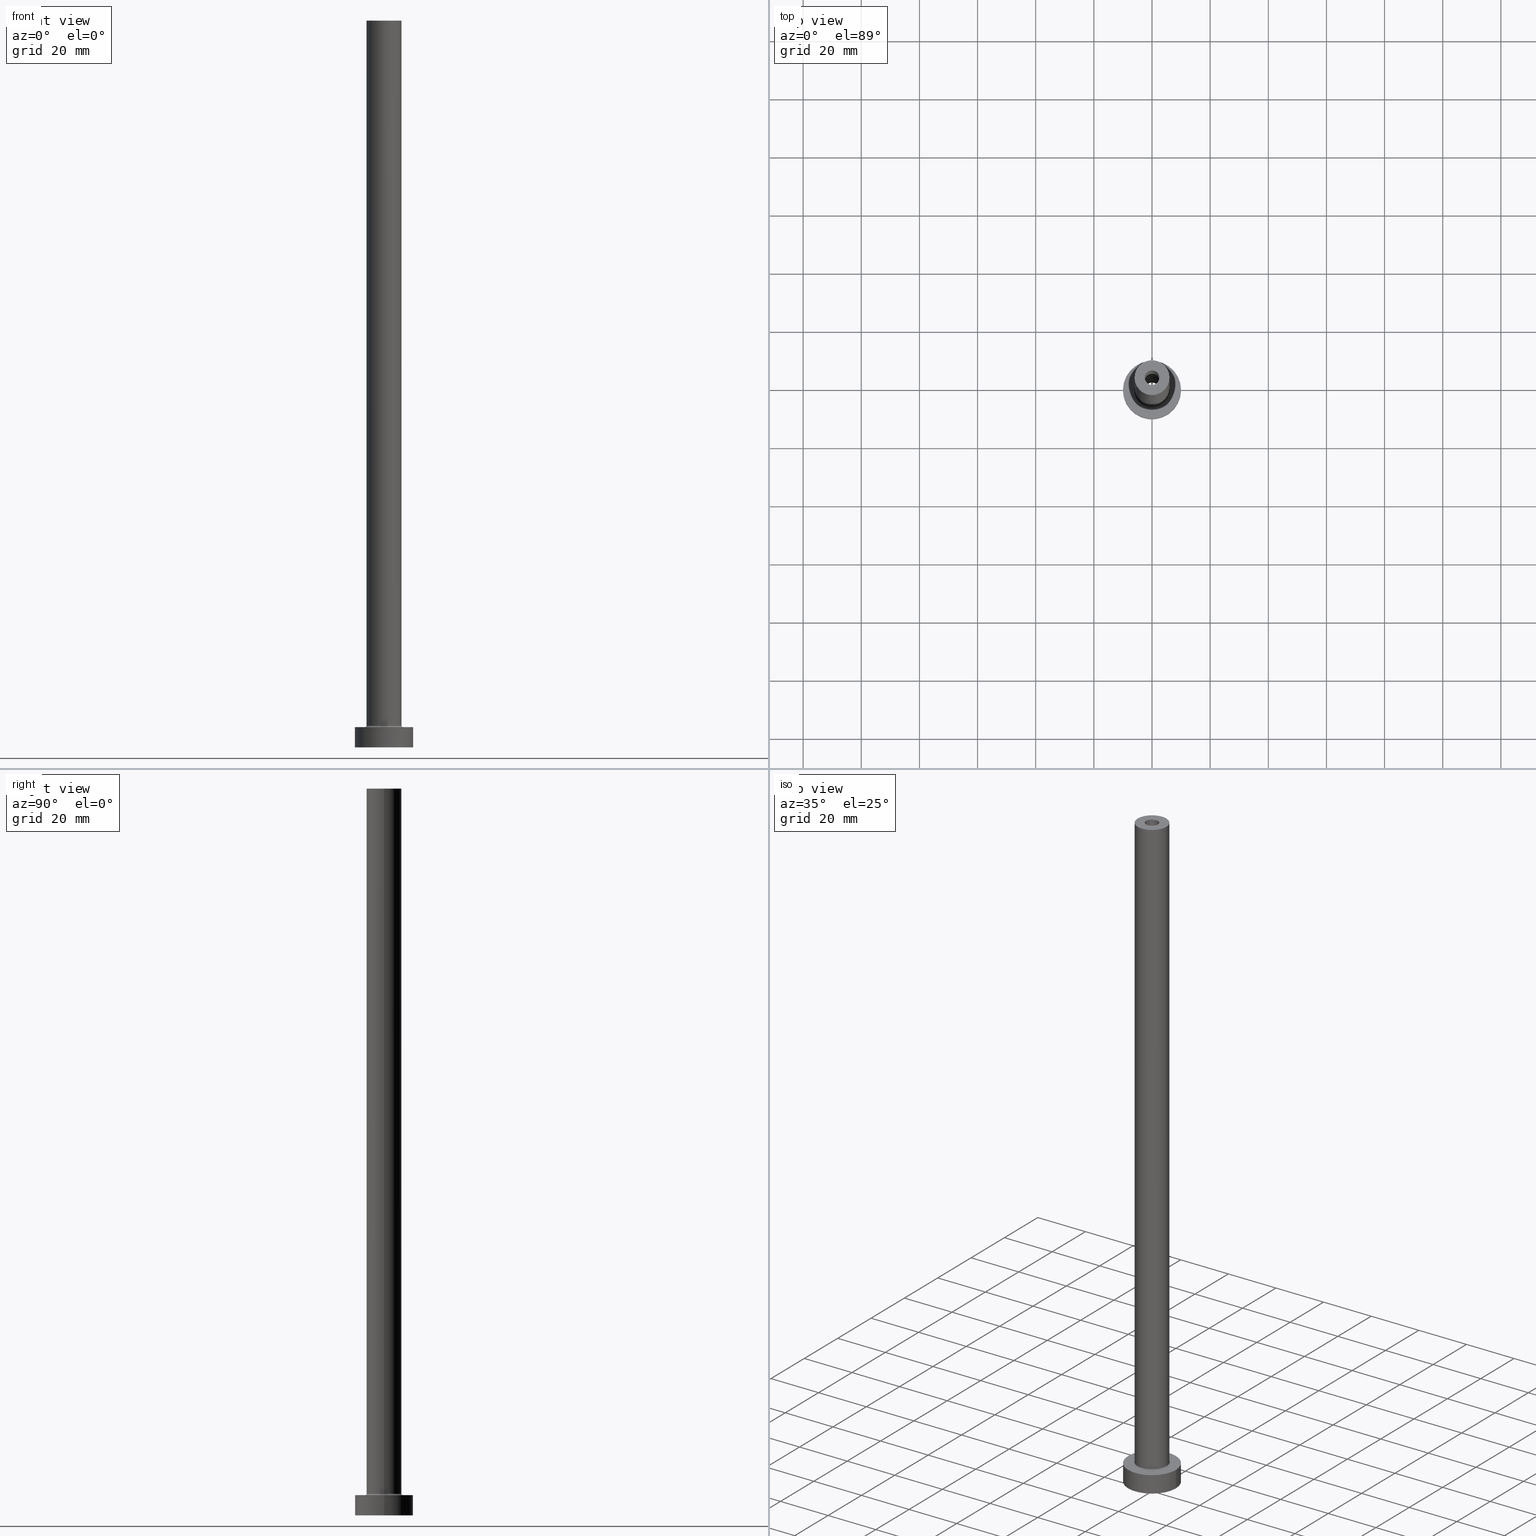
[diagram: canonical four-view strip — front | top / right | iso, engineering-drawing reading convention]
A machine part, canonical four-view strip (front | top / right | iso — engineering-drawing reading convention). The complete STEP part file that produces these views, byte-faithful:
ISO-10303-21;
HEADER;
FILE_DESCRIPTION (( 'STEP AP203' ),
    '1' );
FILE_NAME ('00a3.STEP',
    '2023-02-13T16:46:33',
    ( '' ),
    ( '' ),
    'SwSTEP 2.0',
    'SolidWorks 2019',
    '' );
FILE_SCHEMA (( 'CONFIG_CONTROL_DESIGN' ));
ENDSEC;

DATA;
#1 = DIRECTION ( 'NONE',  ( 1.000000000000000000, 0.000000000000000000, 0.000000000000000000 ) ) ;
#2 = ADVANCED_FACE ( 'NONE', ( #62 ), #175, .F. ) ;
#3 = FACE_BOUND ( 'NONE', #322, .T. ) ;
#4 = DIRECTION ( 'NONE',  ( 1.000000000000000000, 0.000000000000000000, -0.000000000000000000 ) ) ;
#5 = AXIS2_PLACEMENT_3D ( 'NONE', #11, #285, #88 ) ;
#6 = DIRECTION ( 'NONE',  ( 0.000000000000000000, 0.000000000000000000, -1.000000000000000000 ) ) ;
#7 = EDGE_LOOP ( 'NONE', ( #290, #405, #328, #369 ) ) ;
#8 = CYLINDRICAL_SURFACE ( 'NONE', #448, 6.000000000000000888 ) ;
#9 = EDGE_LOOP ( 'NONE', ( #42, #411 ) ) ;
#10 = CC_DESIGN_PERSON_AND_ORGANIZATION_ASSIGNMENT ( #299, #64, ( #324 ) ) ;
#11 = CARTESIAN_POINT ( 'NONE',  ( 0.000000000000000000, 0.000000000000000000, 212.4953318805773961 ) ) ;
#12 = VERTEX_POINT ( 'NONE', #382 ) ;
#13 = AXIS2_PLACEMENT_3D ( 'NONE', #379, #94, #101 ) ;
#14 = ORIENTED_EDGE ( 'NONE', *, *, #168, .T. ) ;
#15 = CC_DESIGN_SECURITY_CLASSIFICATION ( #145, ( #324 ) ) ;
#16 = EDGE_CURVE ( 'NONE', #217, #51, #269, .T. ) ;
#17 = DATE_AND_TIME ( #166, #200 ) ;
#18 = ORIENTED_EDGE ( 'NONE', *, *, #137, .F. ) ;
#19 = DIRECTION ( 'NONE',  ( 1.000000000000000000, 0.000000000000000000, -0.000000000000000000 ) ) ;
#20 = DIRECTION ( 'NONE',  ( 0.000000000000000000, 0.000000000000000000, 1.000000000000000000 ) ) ;
#21 = EDGE_CURVE ( 'NONE', #121, #12, #35, .T. ) ;
#22 = AXIS2_PLACEMENT_3D ( 'NONE', #275, #357, #208 ) ;
#23 = APPROVAL_ROLE ( '' ) ;
#24 = DIRECTION ( 'NONE',  ( 1.000000000000000000, 0.000000000000000000, 0.000000000000000000 ) ) ;
#25 = PERSON_AND_ORGANIZATION ( #291, #401 ) ;
#26 = ORIENTED_EDGE ( 'NONE', *, *, #192, .T. ) ;
#27 = CARTESIAN_POINT ( 'NONE',  ( 0.000000000000000000, 0.000000000000000000, 7.000000000000000000 ) ) ;
#28 = AXIS2_PLACEMENT_3D ( 'NONE', #30, #174, #215 ) ;
#29 = ADVANCED_FACE ( 'NONE', ( #414 ), #106, .F. ) ;
#30 = CARTESIAN_POINT ( 'NONE',  ( 0.000000000000000000, 0.000000000000000000, 0.000000000000000000 ) ) ;
#31 = EDGE_LOOP ( 'NONE', ( #286, #90, #350, #262 ) ) ;
#32 = CARTESIAN_POINT ( 'NONE',  ( 0.000000000000000000, 0.000000000000000000, 205.0000000000000284 ) ) ;
#33 = EDGE_LOOP ( 'NONE', ( #36, #125 ) ) ;
#34 = DIRECTION ( 'NONE',  ( 1.000000000000000000, 0.000000000000000000, 0.000000000000000000 ) ) ;
#35 = CIRCLE ( 'NONE', #292, 6.000000000000000888 ) ;
#36 = ORIENTED_EDGE ( 'NONE', *, *, #37, .F. ) ;
#37 = EDGE_CURVE ( 'NONE', #251, #265, #68, .T. ) ;
#38 = VECTOR ( 'NONE', #354, 1000.000000000000000 ) ;
#39 = DIRECTION ( 'NONE',  ( -0.000000000000000000, -0.000000000000000000, -1.000000000000000000 ) ) ;
#40 = CARTESIAN_POINT ( 'NONE',  ( 0.000000000000000000, 0.000000000000000000, 205.0000000000000284 ) ) ;
#41 = CARTESIAN_POINT ( 'NONE',  ( -6.000000000000000888, 0.000000000000000000, 250.0000000000000000 ) ) ;
#42 = ORIENTED_EDGE ( 'NONE', *, *, #21, .T. ) ;
#43 = AXIS2_PLACEMENT_3D ( 'NONE', #455, #344, #268 ) ;
#44 = AXIS2_PLACEMENT_3D ( 'NONE', #363, #187, #4 ) ;
#45 = EDGE_CURVE ( 'NONE', #304, #406, #99, .T. ) ;
#46 = DIRECTION ( 'NONE',  ( 1.000000000000000000, 0.000000000000000000, 0.000000000000000000 ) ) ;
#47 = EDGE_LOOP ( 'NONE', ( #156, #219 ) ) ;
#48 = DIRECTION ( 'NONE',  ( 1.000000000000000000, 0.000000000000000000, 0.000000000000000000 ) ) ;
#49 = EDGE_LOOP ( 'NONE', ( #110, #335 ) ) ;
#50 = DIRECTION ( 'NONE',  ( 1.224646799147353207E-16, 1.000000000000000000, -0.000000000000000000 ) ) ;
#51 = VERTEX_POINT ( 'NONE', #138 ) ;
#52 = EDGE_CURVE ( 'NONE', #353, #298, #157, .T. ) ;
#53 = CLOSED_SHELL ( 'NONE', ( #380, #392, #2, #351, #122, #179, #311, #132, #329, #422, #29, #397, #89, #287 ) ) ;
#54 = CARTESIAN_POINT ( 'NONE',  ( 0.000000000000000000, 0.000000000000000000, 7.000000000000000000 ) ) ;
#55 = AXIS2_PLACEMENT_3D ( 'NONE', #73, #425, #75 ) ;
#56 = ORIENTED_EDGE ( 'NONE', *, *, #67, .F. ) ;
#57 = COORDINATED_UNIVERSAL_TIME_OFFSET ( 1, 0, .AHEAD. ) ;
#58 = DIRECTION ( 'NONE',  ( -1.000000000000000000, 0.000000000000000000, 0.000000000000000000 ) ) ;
#59 = CALENDAR_DATE ( 2023, 13, 2 ) ;
#60 = DIRECTION ( 'NONE',  ( 1.000000000000000000, 0.000000000000000000, 0.000000000000000000 ) ) ;
#61 = APPROVAL_DATE_TIME ( #454, #108 ) ;
#62 = FACE_OUTER_BOUND ( 'NONE', #151, .T. ) ;
#63 = CIRCLE ( 'NONE', #317, 10.00000000000000000 ) ;
#64 = PERSON_AND_ORGANIZATION_ROLE ( 'design_supplier' ) ;
#65 = LINE ( 'NONE', #66, #282 ) ;
#66 = CARTESIAN_POINT ( 'NONE',  ( -2.649999999999999911, 0.000000000000000000, 212.4953318805773961 ) ) ;
#67 = EDGE_CURVE ( 'NONE', #205, #265, #450, .T. ) ;
#68 = CIRCLE ( 'NONE', #43, 2.649999999999999911 ) ;
#69 = CARTESIAN_POINT ( 'NONE',  ( 2.649999999999999911, 3.245314017740485962E-16, 0.000000000000000000 ) ) ;
#70 = ORIENTED_EDGE ( 'NONE', *, *, #16, .T. ) ;
#71 = AXIS2_PLACEMENT_3D ( 'NONE', #321, #6, #319 ) ;
#72 = LOCAL_TIME ( 17, 46, 33.00000000000000000, #381 ) ;
#73 = CARTESIAN_POINT ( 'NONE',  ( 0.000000000000000000, 0.000000000000000000, 0.000000000000000000 ) ) ;
#74 = EDGE_CURVE ( 'NONE', #265, #251, #112, .T. ) ;
#75 = DIRECTION ( 'NONE',  ( 1.000000000000000000, 0.000000000000000000, 0.000000000000000000 ) ) ;
#76 = ORIENTED_EDGE ( 'NONE', *, *, #346, .F. ) ;
#77 = DIRECTION ( 'NONE',  ( 0.000000000000000000, 0.000000000000000000, 1.000000000000000000 ) ) ;
#78 = AXIS2_PLACEMENT_3D ( 'NONE', #27, #171, #58 ) ;
#79 = CARTESIAN_POINT ( 'NONE',  ( -10.00000000000000000, 0.000000000000000000, 7.000000000000000000 ) ) ;
#80 = CARTESIAN_POINT ( 'NONE',  ( 0.000000000000000000, 0.000000000000000000, 250.0000000000000000 ) ) ;
#81 = ORIENTED_EDGE ( 'NONE', *, *, #434, .T. ) ;
#82 = CC_DESIGN_PERSON_AND_ORGANIZATION_ASSIGNMENT ( #100, #235, ( #324 ) ) ;
#83 = DIRECTION ( 'NONE',  ( 0.000000000000000000, 0.000000000000000000, 1.000000000000000000 ) ) ;
#84 = ORIENTED_EDGE ( 'NONE', *, *, #413, .T. ) ;
#85 = CIRCLE ( 'NONE', #55, 10.00000000000000000 ) ;
#86 = DIRECTION ( 'NONE',  ( 0.000000000000000000, 0.000000000000000000, 1.000000000000000000 ) ) ;
#87 = ORIENTED_EDGE ( 'NONE', *, *, #242, .T. ) ;
#88 = DIRECTION ( 'NONE',  ( -1.000000000000000000, 0.000000000000000000, 0.000000000000000000 ) ) ;
#89 = ADVANCED_FACE ( 'NONE', ( #231, #103 ), #234, .F. ) ;
#90 = ORIENTED_EDGE ( 'NONE', *, *, #67, .T. ) ;
#91 = CARTESIAN_POINT ( 'NONE',  ( 2.500000000000000000, 3.061616997868382648E-16, 250.0000000000000000 ) ) ;
#92 = ORIENTED_EDGE ( 'NONE', *, *, #413, .F. ) ;
#93 = DIRECTION ( 'NONE',  ( 0.000000000000000000, 0.000000000000000000, 1.000000000000000000 ) ) ;
#94 = DIRECTION ( 'NONE',  ( -0.000000000000000000, -0.000000000000000000, -1.000000000000000000 ) ) ;
#95 = PERSON_AND_ORGANIZATION_ROLE ( 'design_owner' ) ;
#96 = VERTEX_POINT ( 'NONE', #417 ) ;
#97 = APPLICATION_PROTOCOL_DEFINITION ( 'international standard', 'config_control_design', 1994, #451 ) ;
#98 = DIRECTION ( 'NONE',  ( 1.000000000000000000, 0.000000000000000000, 0.000000000000000000 ) ) ;
#99 = CIRCLE ( 'NONE', #339, 10.00000000000000000 ) ;
#100 = PERSON_AND_ORGANIZATION ( #291, #401 ) ;
#101 = DIRECTION ( 'NONE',  ( 1.000000000000000000, 0.000000000000000000, 0.000000000000000000 ) ) ;
#102 = PERSON_AND_ORGANIZATION ( #291, #401 ) ;
#103 = FACE_OUTER_BOUND ( 'NONE', #253, .T. ) ;
#104 = EDGE_CURVE ( 'NONE', #160, #251, #65, .T. ) ;
#105 = CYLINDRICAL_SURFACE ( 'NONE', #333, 10.00000000000000000 ) ;
#106 = TOROIDAL_SURFACE ( 'NONE', #264, 6.500000000000000888, 0.5000000000000000000 ) ;
#107 = CARTESIAN_POINT ( 'NONE',  ( 0.000000000000000000, 0.000000000000000000, 250.0000000000000000 ) ) ;
#108 = APPROVAL ( #343, 'NEUR�EN�' ) ;
#109 = CARTESIAN_POINT ( 'NONE',  ( 2.500000000000000000, 3.061616997868382648E-16, 250.0000000000000000 ) ) ;
#110 = ORIENTED_EDGE ( 'NONE', *, *, #305, .F. ) ;
#111 = DIRECTION ( 'NONE',  ( 0.000000000000000000, 0.000000000000000000, 1.000000000000000000 ) ) ;
#112 = CIRCLE ( 'NONE', #197, 2.649999999999999911 ) ;
#113 = DIRECTION ( 'NONE',  ( 0.000000000000000000, 0.000000000000000000, 1.000000000000000000 ) ) ;
#114 = VECTOR ( 'NONE', #359, 1000.000000000000000 ) ;
#115 = LOCAL_TIME ( 17, 46, 33.00000000000000000, #271 ) ;
#116 = CARTESIAN_POINT ( 'NONE',  ( 0.000000000000000000, 0.000000000000000000, 250.0000000000000000 ) ) ;
#117 = CC_DESIGN_PERSON_AND_ORGANIZATION_ASSIGNMENT ( #306, #95, ( #420 ) ) ;
#118 = CYLINDRICAL_SURFACE ( 'NONE', #71, 2.649999999999999911 ) ;
#119 = ORIENTED_EDGE ( 'NONE', *, *, #212, .F. ) ;
#120 = DIRECTION ( 'NONE',  ( -0.000000000000000000, -0.000000000000000000, -1.000000000000000000 ) ) ;
#121 = VERTEX_POINT ( 'NONE', #202 ) ;
#122 = ADVANCED_FACE ( 'NONE', ( #128 ), #347, .T. ) ;
#123 = AXIS2_PLACEMENT_3D ( 'NONE', #54, #86, #430 ) ;
#124 = CARTESIAN_POINT ( 'NONE',  ( 0.000000000000000000, 0.000000000000000000, 250.0000000000000000 ) ) ;
#125 = ORIENTED_EDGE ( 'NONE', *, *, #74, .F. ) ;
#126 = VERTEX_POINT ( 'NONE', #336 ) ;
#127 =( NAMED_UNIT ( * ) SI_UNIT ( $, .STERADIAN. ) SOLID_ANGLE_UNIT ( ) );
#128 = FACE_OUTER_BOUND ( 'NONE', #281, .T. ) ;
#129 = DATE_AND_TIME ( #136, #220 ) ;
#130 = CARTESIAN_POINT ( 'NONE',  ( 0.000000000000000000, 0.000000000000000000, 205.0000000000000284 ) ) ;
#131 = CC_DESIGN_APPROVAL ( #340, ( #324 ) ) ;
#132 = ADVANCED_FACE ( 'NONE', ( #162, #419 ), #391, .F. ) ;
#133 = CARTESIAN_POINT ( 'NONE',  ( 0.000000000000000000, 0.000000000000000000, 0.000000000000000000 ) ) ;
#134 = PERSON_AND_ORGANIZATION_ROLE ( 'creator' ) ;
#135 = CARTESIAN_POINT ( 'NONE',  ( 0.000000000000000000, 0.000000000000000000, 7.000000000000000000 ) ) ;
#136 = CALENDAR_DATE ( 2023, 13, 2 ) ;
#137 = EDGE_CURVE ( 'NONE', #442, #126, #387, .T. ) ;
#138 = CARTESIAN_POINT ( 'NONE',  ( -2.500000000000000000, 0.000000000000000000, 205.0000000000000284 ) ) ;
#139 = CIRCLE ( 'NONE', #310, 2.500000000000000000 ) ;
#140 = DIRECTION ( 'NONE',  ( -1.000000000000000000, 0.000000000000000000, 0.000000000000000000 ) ) ;
#141 = DIRECTION ( 'NONE',  ( 0.000000000000000000, 0.000000000000000000, 1.000000000000000000 ) ) ;
#142 = AXIS2_PLACEMENT_3D ( 'NONE', #130, #307, #19 ) ;
#143 = DIRECTION ( 'NONE',  ( 1.000000000000000000, 0.000000000000000000, 0.000000000000000000 ) ) ;
#144 = AXIS2_PLACEMENT_3D ( 'NONE', #32, #77, #34 ) ;
#145 = SECURITY_CLASSIFICATION ( '', '', #201 ) ;
#146 = DIRECTION ( 'NONE',  ( 1.000000000000000000, 0.000000000000000000, 0.000000000000000000 ) ) ;
#147 = CARTESIAN_POINT ( 'NONE',  ( 0.000000000000000000, 0.000000000000000000, 7.000000000000000000 ) ) ;
#148 = EDGE_CURVE ( 'NONE', #210, #298, #204, .T. ) ;
#149 = CARTESIAN_POINT ( 'NONE',  ( 0.000000000000000000, 0.000000000000000000, 7.500000000000007105 ) ) ;
#150 = DIRECTION ( 'NONE',  ( -1.000000000000000000, 0.000000000000000000, 0.000000000000000000 ) ) ;
#151 = EDGE_LOOP ( 'NONE', ( #182, #84, #76, #331 ) ) ;
#152 = DIRECTION ( 'NONE',  ( 0.000000000000000000, 0.000000000000000000, 1.000000000000000000 ) ) ;
#153 = ORIENTED_EDGE ( 'NONE', *, *, #168, .F. ) ;
#154 = EDGE_CURVE ( 'NONE', #406, #304, #189, .T. ) ;
#155 = FACE_OUTER_BOUND ( 'NONE', #31, .T. ) ;
#156 = ORIENTED_EDGE ( 'NONE', *, *, #444, .F. ) ;
#157 = CIRCLE ( 'NONE', #13, 6.500000000000000888 ) ;
#158 = CARTESIAN_POINT ( 'NONE',  ( -10.00000000000000000, 0.000000000000000000, 0.000000000000000000 ) ) ;
#159 = ORIENTED_EDGE ( 'NONE', *, *, #148, .T. ) ;
#160 = VERTEX_POINT ( 'NONE', #180 ) ;
#161 = CC_DESIGN_DATE_AND_TIME_ASSIGNMENT ( #239, #338, ( #408 ) ) ;
#162 = FACE_BOUND ( 'NONE', #33, .T. ) ;
#163 = UNCERTAINTY_MEASURE_WITH_UNIT (LENGTH_MEASURE( 1.000000000000000082E-05 ), #164, 'distance_accuracy_value', 'NONE');
#164 =( LENGTH_UNIT ( ) NAMED_UNIT ( * ) SI_UNIT ( .MILLI., .METRE. ) );
#165 = DIRECTION ( 'NONE',  ( 0.000000000000000000, 0.000000000000000000, -1.000000000000000000 ) ) ;
#166 = CALENDAR_DATE ( 2023, 13, 2 ) ;
#167 = CARTESIAN_POINT ( 'NONE',  ( -2.500000000000000000, 0.000000000000000000, 250.0000000000000000 ) ) ;
#168 = EDGE_CURVE ( 'NONE', #51, #126, #139, .T. ) ;
#169 = COORDINATED_UNIVERSAL_TIME_OFFSET ( 1, 0, .AHEAD. ) ;
#170 = ORIENTED_EDGE ( 'NONE', *, *, #246, .T. ) ;
#171 = DIRECTION ( 'NONE',  ( -0.000000000000000000, -0.000000000000000000, -1.000000000000000000 ) ) ;
#172 = AXIS2_PLACEMENT_3D ( 'NONE', #107, #460, #243 ) ;
#173 = CARTESIAN_POINT ( 'NONE',  ( 10.00000000000000000, 1.224646799147353256E-15, 0.000000000000000000 ) ) ;
#174 = DIRECTION ( 'NONE',  ( 0.000000000000000000, 0.000000000000000000, 1.000000000000000000 ) ) ;
#175 = TOROIDAL_SURFACE ( 'NONE', #437, 6.500000000000000888, 0.5000000000000000000 ) ;
#176 = CARTESIAN_POINT ( 'NONE',  ( 6.500000000000000888, 0.000000000000000000, 7.000000000000002665 ) ) ;
#177 = FACE_OUTER_BOUND ( 'NONE', #364, .T. ) ;
#178 = SHAPE_DEFINITION_REPRESENTATION ( #337, #431 ) ;
#179 = ADVANCED_FACE ( 'NONE', ( #428 ), #105, .T. ) ;
#180 = CARTESIAN_POINT ( 'NONE',  ( -2.649999999999999911, 0.000000000000000000, 205.0000000000000284 ) ) ;
#181 = CARTESIAN_POINT ( 'NONE',  ( -6.500000000000000888, 7.960204194457796463E-16, 7.000000000000002665 ) ) ;
#182 = ORIENTED_EDGE ( 'NONE', *, *, #434, .F. ) ;
#183 = AXIS2_PLACEMENT_3D ( 'NONE', #40, #241, #383 ) ;
#184 = ORIENTED_EDGE ( 'NONE', *, *, #386, .T. ) ;
#185 = LINE ( 'NONE', #41, #400 ) ;
#186 = ORIENTED_EDGE ( 'NONE', *, *, #45, .T. ) ;
#187 = DIRECTION ( 'NONE',  ( 0.000000000000000000, 0.000000000000000000, 1.000000000000000000 ) ) ;
#188 = ORIENTED_EDGE ( 'NONE', *, *, #346, .T. ) ;
#189 = CIRCLE ( 'NONE', #342, 10.00000000000000000 ) ;
#190 = DATE_AND_TIME ( #416, #115 ) ;
#191 = ORIENTED_EDGE ( 'NONE', *, *, #242, .F. ) ;
#192 = EDGE_CURVE ( 'NONE', #12, #210, #248, .T. ) ;
#193 = DATE_TIME_ROLE ( 'classification_date' ) ;
#194 = CARTESIAN_POINT ( 'NONE',  ( 2.649999999999999911, 3.245314017740485962E-16, 212.4953318805773961 ) ) ;
#195 = APPROVAL_ROLE ( '' ) ;
#196 = ORIENTED_EDGE ( 'NONE', *, *, #52, .T. ) ;
#197 = AXIS2_PLACEMENT_3D ( 'NONE', #133, #272, #60 ) ;
#198 = AXIS2_PLACEMENT_3D ( 'NONE', #124, #152, #258 ) ;
#199 = CARTESIAN_POINT ( 'NONE',  ( 0.000000000000000000, 0.000000000000000000, 7.500000000000007105 ) ) ;
#200 = LOCAL_TIME ( 17, 46, 33.00000000000000000, #57 ) ;
#201 = SECURITY_CLASSIFICATION_LEVEL ( 'unclassified' ) ;
#202 = CARTESIAN_POINT ( 'NONE',  ( -6.000000000000000888, 0.000000000000000000, 250.0000000000000000 ) ) ;
#203 = CARTESIAN_POINT ( 'NONE',  ( -2.649999999999999911, 0.000000000000000000, 0.000000000000000000 ) ) ;
#204 = CIRCLE ( 'NONE', #358, 0.5000000000000004441 ) ;
#205 = VERTEX_POINT ( 'NONE', #247 ) ;
#206 = EDGE_CURVE ( 'NONE', #294, #433, #85, .T. ) ;
#207 = LINE ( 'NONE', #315, #384 ) ;
#208 = DIRECTION ( 'NONE',  ( 1.000000000000000000, 0.000000000000000000, 0.000000000000000000 ) ) ;
#209 = DESIGN_CONTEXT ( 'detailed design', #263, 'design' ) ;
#210 = VERTEX_POINT ( 'NONE', #385 ) ;
#211 = DIRECTION ( 'NONE',  ( 0.000000000000000000, 0.000000000000000000, 1.000000000000000000 ) ) ;
#212 = EDGE_CURVE ( 'NONE', #406, #433, #273, .T. ) ;
#213 =( GEOMETRIC_REPRESENTATION_CONTEXT ( 3 ) GLOBAL_UNCERTAINTY_ASSIGNED_CONTEXT ( ( #163 ) ) GLOBAL_UNIT_ASSIGNED_CONTEXT ( ( #164, #443, #127 ) ) REPRESENTATION_CONTEXT ( 'NONE', 'WORKASPACE' ) );
#214 = APPROVAL_PERSON_ORGANIZATION ( #334, #340, #23 ) ;
#215 = DIRECTION ( 'NONE',  ( 1.000000000000000000, 0.000000000000000000, -0.000000000000000000 ) ) ;
#216 = CARTESIAN_POINT ( 'NONE',  ( 0.000000000000000000, 0.000000000000000000, 250.0000000000000000 ) ) ;
#217 = VERTEX_POINT ( 'NONE', #279 ) ;
#218 = FACE_OUTER_BOUND ( 'NONE', #436, .T. ) ;
#219 = ORIENTED_EDGE ( 'NONE', *, *, #206, .F. ) ;
#220 = LOCAL_TIME ( 17, 46, 33.00000000000000000, #169 ) ;
#221 = CYLINDRICAL_SURFACE ( 'NONE', #423, 6.000000000000000888 ) ;
#222 = ORIENTED_EDGE ( 'NONE', *, *, #45, .F. ) ;
#223 = CARTESIAN_POINT ( 'NONE',  ( -10.00000000000000000, 0.000000000000000000, 7.000000000000000000 ) ) ;
#224 = ORIENTED_EDGE ( 'NONE', *, *, #16, .F. ) ;
#225 = CYLINDRICAL_SURFACE ( 'NONE', #5, 2.649999999999999911 ) ;
#226 = VECTOR ( 'NONE', #165, 1000.000000000000000 ) ;
#227 = ORIENTED_EDGE ( 'NONE', *, *, #360, .T. ) ;
#228 = EDGE_CURVE ( 'NONE', #304, #294, #207, .T. ) ;
#229 = CIRCLE ( 'NONE', #407, 6.500000000000000888 ) ;
#230 = CALENDAR_DATE ( 2023, 13, 2 ) ;
#231 = FACE_BOUND ( 'NONE', #355, .T. ) ;
#232 = DIRECTION ( 'NONE',  ( 0.000000000000000000, 0.000000000000000000, 1.000000000000000000 ) ) ;
#233 = DIRECTION ( 'NONE',  ( 1.000000000000000000, 0.000000000000000000, 0.000000000000000000 ) ) ;
#234 = PLANE ( 'NONE',  #142 ) ;
#235 = PERSON_AND_ORGANIZATION_ROLE ( 'creator' ) ;
#236 = CIRCLE ( 'NONE', #257, 6.000000000000000888 ) ;
#237 = DIRECTION ( 'NONE',  ( 0.000000000000000000, 0.000000000000000000, -1.000000000000000000 ) ) ;
#238 = AXIS2_PLACEMENT_3D ( 'NONE', #452, #93, #233 ) ;
#239 = DATE_AND_TIME ( #230, #372 ) ;
#240 = DIRECTION ( 'NONE',  ( 1.000000000000000000, 0.000000000000000000, 0.000000000000000000 ) ) ;
#241 = DIRECTION ( 'NONE',  ( 0.000000000000000000, 0.000000000000000000, 1.000000000000000000 ) ) ;
#242 = EDGE_CURVE ( 'NONE', #210, #96, #390, .T. ) ;
#243 = DIRECTION ( 'NONE',  ( -1.000000000000000000, 0.000000000000000000, 0.000000000000000000 ) ) ;
#244 = AXIS2_PLACEMENT_3D ( 'NONE', #252, #50, #438 ) ;
#245 = CARTESIAN_POINT ( 'NONE',  ( 0.000000000000000000, 0.000000000000000000, 7.000000000000000000 ) ) ;
#246 = EDGE_CURVE ( 'NONE', #126, #51, #266, .T. ) ;
#247 = CARTESIAN_POINT ( 'NONE',  ( 2.649999999999999911, 3.245314017740485962E-16, 205.0000000000000284 ) ) ;
#248 = LINE ( 'NONE', #418, #249 ) ;
#249 = VECTOR ( 'NONE', #457, 1000.000000000000000 ) ;
#250 = DIRECTION ( 'NONE',  ( -0.000000000000000000, -0.000000000000000000, -1.000000000000000000 ) ) ;
#251 = VERTEX_POINT ( 'NONE', #203 ) ;
#252 = CARTESIAN_POINT ( 'NONE',  ( -6.500000000000000888, 7.960204194457796463E-16, 7.500000000000007105 ) ) ;
#253 = EDGE_LOOP ( 'NONE', ( #445, #388 ) ) ;
#254 = PRODUCT_RELATED_PRODUCT_CATEGORY ( 'detail', '', ( #420 ) ) ;
#255 = FACE_BOUND ( 'NONE', #49, .T. ) ;
#256 = ORIENTED_EDGE ( 'NONE', *, *, #52, .F. ) ;
#257 = AXIS2_PLACEMENT_3D ( 'NONE', #149, #289, #435 ) ;
#258 = DIRECTION ( 'NONE',  ( 1.000000000000000000, 0.000000000000000000, 0.000000000000000000 ) ) ;
#259 = ORIENTED_EDGE ( 'NONE', *, *, #137, .T. ) ;
#260 = CARTESIAN_POINT ( 'NONE',  ( 0.000000000000000000, 0.000000000000000000, 7.000000000000000000 ) ) ;
#261 = CC_DESIGN_DATE_AND_TIME_ASSIGNMENT ( #129, #193, ( #145 ) ) ;
#262 = ORIENTED_EDGE ( 'NONE', *, *, #104, .F. ) ;
#263 = APPLICATION_CONTEXT ( 'configuration controlled 3d designs of mechanical parts and assemblies' ) ;
#264 = AXIS2_PLACEMENT_3D ( 'NONE', #199, #232, #98 ) ;
#265 = VERTEX_POINT ( 'NONE', #69 ) ;
#266 = CIRCLE ( 'NONE', #144, 2.500000000000000000 ) ;
#267 = PERSON_AND_ORGANIZATION ( #291, #401 ) ;
#268 = DIRECTION ( 'NONE',  ( 1.000000000000000000, 0.000000000000000000, 0.000000000000000000 ) ) ;
#269 = LINE ( 'NONE', #167, #226 ) ;
#270 = DIRECTION ( 'NONE',  ( 0.000000000000000000, 0.000000000000000000, 1.000000000000000000 ) ) ;
#271 = COORDINATED_UNIVERSAL_TIME_OFFSET ( 1, 0, .AHEAD. ) ;
#272 = DIRECTION ( 'NONE',  ( -0.000000000000000000, -0.000000000000000000, -1.000000000000000000 ) ) ;
#273 = LINE ( 'NONE', #79, #114 ) ;
#274 = EDGE_CURVE ( 'NONE', #160, #205, #365, .T. ) ;
#275 = CARTESIAN_POINT ( 'NONE',  ( 0.000000000000000000, 0.000000000000000000, 7.500000000000007105 ) ) ;
#276 = CARTESIAN_POINT ( 'NONE',  ( 6.500000000000000888, 0.000000000000000000, 7.500000000000007105 ) ) ;
#277 = CIRCLE ( 'NONE', #295, 6.000000000000000888 ) ;
#278 = ORIENTED_EDGE ( 'NONE', *, *, #104, .T. ) ;
#279 = CARTESIAN_POINT ( 'NONE',  ( -2.500000000000000000, 0.000000000000000000, 250.0000000000000000 ) ) ;
#280 = CARTESIAN_POINT ( 'NONE',  ( 0.000000000000000000, 0.000000000000000000, 205.0000000000000284 ) ) ;
#281 = EDGE_LOOP ( 'NONE', ( #222, #421, #376, #119 ) ) ;
#282 = VECTOR ( 'NONE', #374, 1000.000000000000000 ) ;
#283 = PLANE ( 'NONE',  #44 ) ;
#284 = AXIS2_PLACEMENT_3D ( 'NONE', #216, #393, #370 ) ;
#285 = DIRECTION ( 'NONE',  ( 0.000000000000000000, 0.000000000000000000, -1.000000000000000000 ) ) ;
#286 = ORIENTED_EDGE ( 'NONE', *, *, #274, .T. ) ;
#287 = ADVANCED_FACE ( 'NONE', ( #177 ), #349, .F. ) ;
#288 = MANIFOLD_SOLID_BREP ( 'Odebrat vysunut�m4', #53 ) ;
#289 = DIRECTION ( 'NONE',  ( 0.000000000000000000, 0.000000000000000000, 1.000000000000000000 ) ) ;
#290 = ORIENTED_EDGE ( 'NONE', *, *, #228, .F. ) ;
#291 = PERSON ( 'NEUR�EN�', 'NEUR�EN�', 'NEUR�EN�', ('NEUR�EN�'), ('NEUR�EN�'), ('NEUR�EN�') ) ;
#292 = AXIS2_PLACEMENT_3D ( 'NONE', #313, #453, #240 ) ;
#293 = DIRECTION ( 'NONE',  ( -0.000000000000000000, -0.000000000000000000, -1.000000000000000000 ) ) ;
#294 = VERTEX_POINT ( 'NONE', #173 ) ;
#295 = AXIS2_PLACEMENT_3D ( 'NONE', #426, #141, #143 ) ;
#296 = EDGE_CURVE ( 'NONE', #12, #121, #277, .T. ) ;
#297 = DIRECTION ( 'NONE',  ( 0.000000000000000000, 0.000000000000000000, 1.000000000000000000 ) ) ;
#298 = VERTEX_POINT ( 'NONE', #176 ) ;
#299 = PERSON_AND_ORGANIZATION ( #291, #401 ) ;
#300 = ORIENTED_EDGE ( 'NONE', *, *, #427, .T. ) ;
#301 = COORDINATED_UNIVERSAL_TIME_OFFSET ( 1, 0, .AHEAD. ) ;
#302 = ORIENTED_EDGE ( 'NONE', *, *, #21, .F. ) ;
#303 = PERSON_AND_ORGANIZATION ( #291, #401 ) ;
#304 = VERTEX_POINT ( 'NONE', #316 ) ;
#305 = EDGE_CURVE ( 'NONE', #217, #442, #456, .T. ) ;
#306 = PERSON_AND_ORGANIZATION ( #291, #401 ) ;
#307 = DIRECTION ( 'NONE',  ( 0.000000000000000000, 0.000000000000000000, 1.000000000000000000 ) ) ;
#308 = APPROVAL_STATUS ( 'not_yet_approved' ) ;
#309 = VECTOR ( 'NONE', #237, 1000.000000000000000 ) ;
#310 = AXIS2_PLACEMENT_3D ( 'NONE', #280, #113, #1 ) ;
#311 = ADVANCED_FACE ( 'NONE', ( #3, #327 ), #432, .T. ) ;
#312 = APPROVAL_PERSON_ORGANIZATION ( #267, #375, #195 ) ;
#313 = CARTESIAN_POINT ( 'NONE',  ( 0.000000000000000000, 0.000000000000000000, 250.0000000000000000 ) ) ;
#314 = DIRECTION ( 'NONE',  ( 0.000000000000000000, -1.000000000000000000, 0.000000000000000000 ) ) ;
#315 = CARTESIAN_POINT ( 'NONE',  ( 10.00000000000000000, 1.224646799147353256E-15, 7.000000000000000000 ) ) ;
#316 = CARTESIAN_POINT ( 'NONE',  ( 10.00000000000000000, 1.224646799147353256E-15, 7.000000000000000000 ) ) ;
#317 = AXIS2_PLACEMENT_3D ( 'NONE', #398, #297, #441 ) ;
#318 = DIRECTION ( 'NONE',  ( 1.000000000000000000, 0.000000000000000000, 0.000000000000000000 ) ) ;
#319 = DIRECTION ( 'NONE',  ( -1.000000000000000000, 0.000000000000000000, 0.000000000000000000 ) ) ;
#320 = CC_DESIGN_PERSON_AND_ORGANIZATION_ASSIGNMENT ( #303, #134, ( #408 ) ) ;
#321 = CARTESIAN_POINT ( 'NONE',  ( 0.000000000000000000, 0.000000000000000000, 212.4953318805773961 ) ) ;
#322 = EDGE_LOOP ( 'NONE', ( #188, #196 ) ) ;
#323 = CIRCLE ( 'NONE', #244, 0.5000000000000004441 ) ;
#324 = PRODUCT_DEFINITION_FORMATION_WITH_SPECIFIED_SOURCE ( 'LIBOVOLN�', '', #420, .NOT_KNOWN. ) ;
#325 = FACE_OUTER_BOUND ( 'NONE', #396, .T. ) ;
#326 = ORIENTED_EDGE ( 'NONE', *, *, #296, .F. ) ;
#327 = FACE_OUTER_BOUND ( 'NONE', #403, .T. ) ;
#328 = ORIENTED_EDGE ( 'NONE', *, *, #212, .T. ) ;
#329 = ADVANCED_FACE ( 'NONE', ( #325 ), #221, .T. ) ;
#330 = FACE_OUTER_BOUND ( 'NONE', #447, .T. ) ;
#331 = ORIENTED_EDGE ( 'NONE', *, *, #148, .F. ) ;
#332 = CIRCLE ( 'NONE', #440, 2.649999999999999911 ) ;
#333 = AXIS2_PLACEMENT_3D ( 'NONE', #245, #39, #140 ) ;
#334 = PERSON_AND_ORGANIZATION ( #291, #401 ) ;
#335 = ORIENTED_EDGE ( 'NONE', *, *, #427, .F. ) ;
#336 = CARTESIAN_POINT ( 'NONE',  ( 2.500000000000000000, 3.061616997868382648E-16, 205.0000000000000284 ) ) ;
#337 = PRODUCT_DEFINITION_SHAPE ( 'NONE', 'NONE',  #408 ) ;
#338 = DATE_TIME_ROLE ( 'creation_date' ) ;
#339 = AXIS2_PLACEMENT_3D ( 'NONE', #135, #270, #24 ) ;
#340 = APPROVAL ( #373, 'NEUR�EN�' ) ;
#341 = CARTESIAN_POINT ( 'NONE',  ( 0.000000000000000000, 0.000000000000000000, 7.500000000000007105 ) ) ;
#342 = AXIS2_PLACEMENT_3D ( 'NONE', #147, #111, #146 ) ;
#343 = APPROVAL_STATUS ( 'not_yet_approved' ) ;
#344 = DIRECTION ( 'NONE',  ( -0.000000000000000000, -0.000000000000000000, -1.000000000000000000 ) ) ;
#345 = DIRECTION ( 'NONE',  ( 1.000000000000000000, 0.000000000000000000, 0.000000000000000000 ) ) ;
#346 = EDGE_CURVE ( 'NONE', #298, #353, #229, .T. ) ;
#347 = CYLINDRICAL_SURFACE ( 'NONE', #78, 10.00000000000000000 ) ;
#348 = CC_DESIGN_APPROVAL ( #108, ( #408 ) ) ;
#349 = CYLINDRICAL_SURFACE ( 'NONE', #172, 2.500000000000000000 ) ;
#350 = ORIENTED_EDGE ( 'NONE', *, *, #74, .T. ) ;
#351 = ADVANCED_FACE ( 'NONE', ( #330 ), #8, .T. ) ;
#352 = DIRECTION ( 'NONE',  ( 0.000000000000000000, 0.000000000000000000, -1.000000000000000000 ) ) ;
#353 = VERTEX_POINT ( 'NONE', #181 ) ;
#354 = DIRECTION ( 'NONE',  ( 0.000000000000000000, 0.000000000000000000, -1.000000000000000000 ) ) ;
#355 = EDGE_LOOP ( 'NONE', ( #14, #170 ) ) ;
#356 = APPROVAL_DATE_TIME ( #190, #375 ) ;
#357 = DIRECTION ( 'NONE',  ( 0.000000000000000000, 0.000000000000000000, 1.000000000000000000 ) ) ;
#358 = AXIS2_PLACEMENT_3D ( 'NONE', #276, #314, #352 ) ;
#359 = DIRECTION ( 'NONE',  ( -0.000000000000000000, -0.000000000000000000, -1.000000000000000000 ) ) ;
#360 = EDGE_CURVE ( 'NONE', #205, #160, #332, .T. ) ;
#361 = DIRECTION ( 'NONE',  ( -0.000000000000000000, -0.000000000000000000, -1.000000000000000000 ) ) ;
#362 = ORIENTED_EDGE ( 'NONE', *, *, #386, .F. ) ;
#363 = CARTESIAN_POINT ( 'NONE',  ( 0.000000000000000000, 0.000000000000000000, 250.0000000000000000 ) ) ;
#364 = EDGE_LOOP ( 'NONE', ( #18, #300, #70, #394 ) ) ;
#365 = CIRCLE ( 'NONE', #183, 2.649999999999999911 ) ;
#366 = CARTESIAN_POINT ( 'NONE',  ( 0.000000000000000000, 0.000000000000000000, 205.0000000000000284 ) ) ;
#367 = ORIENTED_EDGE ( 'NONE', *, *, #37, .T. ) ;
#368 = DIRECTION ( 'NONE',  ( -1.000000000000000000, 0.000000000000000000, 0.000000000000000000 ) ) ;
#369 = ORIENTED_EDGE ( 'NONE', *, *, #444, .T. ) ;
#370 = DIRECTION ( 'NONE',  ( -1.000000000000000000, 0.000000000000000000, 0.000000000000000000 ) ) ;
#371 = EDGE_LOOP ( 'NONE', ( #92, #191, #159, #256 ) ) ;
#372 = LOCAL_TIME ( 17, 46, 33.00000000000000000, #301 ) ;
#373 = APPROVAL_STATUS ( 'not_yet_approved' ) ;
#374 = DIRECTION ( 'NONE',  ( 0.000000000000000000, 0.000000000000000000, -1.000000000000000000 ) ) ;
#375 = APPROVAL ( #308, 'NEUR�EN�' ) ;
#376 = ORIENTED_EDGE ( 'NONE', *, *, #206, .T. ) ;
#377 = APPLICATION_PROTOCOL_DEFINITION ( 'international standard', 'config_control_design', 1994, #263 ) ;
#378 = EDGE_LOOP ( 'NONE', ( #409, #259, #153, #224 ) ) ;
#379 = CARTESIAN_POINT ( 'NONE',  ( 0.000000000000000000, 0.000000000000000000, 7.000000000000000000 ) ) ;
#380 = ADVANCED_FACE ( 'NONE', ( #402 ), #404, .F. ) ;
#381 = COORDINATED_UNIVERSAL_TIME_OFFSET ( 1, 0, .AHEAD. ) ;
#382 = CARTESIAN_POINT ( 'NONE',  ( 6.000000000000000888, 7.347880794884120722E-16, 250.0000000000000000 ) ) ;
#383 = DIRECTION ( 'NONE',  ( 1.000000000000000000, 0.000000000000000000, 0.000000000000000000 ) ) ;
#384 = VECTOR ( 'NONE', #458, 1000.000000000000000 ) ;
#385 = CARTESIAN_POINT ( 'NONE',  ( 6.000000000000000888, 7.347880794884120722E-16, 7.500000000000007105 ) ) ;
#386 = EDGE_CURVE ( 'NONE', #121, #96, #185, .T. ) ;
#387 = LINE ( 'NONE', #109, #38 ) ;
#388 = ORIENTED_EDGE ( 'NONE', *, *, #360, .F. ) ;
#389 = CARTESIAN_POINT ( 'NONE',  ( 0.000000000000000000, 0.000000000000000000, 250.0000000000000000 ) ) ;
#390 = CIRCLE ( 'NONE', #22, 6.000000000000000888 ) ;
#391 = PLANE ( 'NONE',  #28 ) ;
#392 = ADVANCED_FACE ( 'NONE', ( #155 ), #225, .F. ) ;
#393 = DIRECTION ( 'NONE',  ( 0.000000000000000000, 0.000000000000000000, -1.000000000000000000 ) ) ;
#394 = ORIENTED_EDGE ( 'NONE', *, *, #246, .F. ) ;
#395 = FACE_OUTER_BOUND ( 'NONE', #9, .T. ) ;
#396 = EDGE_LOOP ( 'NONE', ( #439, #302, #184, #81 ) ) ;
#397 = ADVANCED_FACE ( 'NONE', ( #218 ), #118, .F. ) ;
#398 = CARTESIAN_POINT ( 'NONE',  ( 0.000000000000000000, 0.000000000000000000, 0.000000000000000000 ) ) ;
#399 = ORIENTED_EDGE ( 'NONE', *, *, #154, .T. ) ;
#400 = VECTOR ( 'NONE', #293, 1000.000000000000000 ) ;
#401 = ORGANIZATION ( 'NEUR�EN�', 'NEUR�EN�', '' ) ;
#402 = FACE_OUTER_BOUND ( 'NONE', #378, .T. ) ;
#403 = EDGE_LOOP ( 'NONE', ( #399, #186 ) ) ;
#404 = CYLINDRICAL_SURFACE ( 'NONE', #284, 2.500000000000000000 ) ;
#405 = ORIENTED_EDGE ( 'NONE', *, *, #154, .F. ) ;
#406 = VERTEX_POINT ( 'NONE', #223 ) ;
#407 = AXIS2_PLACEMENT_3D ( 'NONE', #260, #361, #46 ) ;
#408 = PRODUCT_DEFINITION ( 'NEZN�M�', '', #324, #209 ) ;
#409 = ORIENTED_EDGE ( 'NONE', *, *, #305, .T. ) ;
#410 = APPROVAL_ROLE ( '' ) ;
#411 = ORIENTED_EDGE ( 'NONE', *, *, #296, .T. ) ;
#412 = APPROVAL_DATE_TIME ( #17, #340 ) ;
#413 = EDGE_CURVE ( 'NONE', #96, #353, #323, .T. ) ;
#414 = FACE_OUTER_BOUND ( 'NONE', #371, .T. ) ;
#415 = APPROVAL_PERSON_ORGANIZATION ( #102, #108, #410 ) ;
#416 = CALENDAR_DATE ( 2023, 13, 2 ) ;
#417 = CARTESIAN_POINT ( 'NONE',  ( -6.000000000000000888, 0.000000000000000000, 7.500000000000007105 ) ) ;
#418 = CARTESIAN_POINT ( 'NONE',  ( 6.000000000000000888, 7.347880794884120722E-16, 250.0000000000000000 ) ) ;
#419 = FACE_OUTER_BOUND ( 'NONE', #47, .T. ) ;
#420 = PRODUCT ( '00a3', '00a3', '', ( #449 ) ) ;
#421 = ORIENTED_EDGE ( 'NONE', *, *, #228, .T. ) ;
#422 = ADVANCED_FACE ( 'NONE', ( #255, #395 ), #283, .T. ) ;
#423 = AXIS2_PLACEMENT_3D ( 'NONE', #116, #120, #368 ) ;
#424 = CC_DESIGN_APPROVAL ( #375, ( #145 ) ) ;
#425 = DIRECTION ( 'NONE',  ( 0.000000000000000000, 0.000000000000000000, 1.000000000000000000 ) ) ;
#426 = CARTESIAN_POINT ( 'NONE',  ( 0.000000000000000000, 0.000000000000000000, 250.0000000000000000 ) ) ;
#427 = EDGE_CURVE ( 'NONE', #442, #217, #461, .T. ) ;
#428 = FACE_OUTER_BOUND ( 'NONE', #7, .T. ) ;
#429 = AXIS2_PLACEMENT_3D ( 'NONE', #389, #211, #318 ) ;
#430 = DIRECTION ( 'NONE',  ( 1.000000000000000000, 0.000000000000000000, -0.000000000000000000 ) ) ;
#431 = ADVANCED_BREP_SHAPE_REPRESENTATION ( '00a3', ( #288, #238 ), #213 ) ;
#432 = PLANE ( 'NONE',  #123 ) ;
#433 = VERTEX_POINT ( 'NONE', #158 ) ;
#434 = EDGE_CURVE ( 'NONE', #96, #210, #236, .T. ) ;
#435 = DIRECTION ( 'NONE',  ( 1.000000000000000000, 0.000000000000000000, 0.000000000000000000 ) ) ;
#436 = EDGE_LOOP ( 'NONE', ( #56, #227, #278, #367 ) ) ;
#437 = AXIS2_PLACEMENT_3D ( 'NONE', #341, #20, #345 ) ;
#438 = DIRECTION ( 'NONE',  ( -1.000000000000000000, 1.224646799147351482E-16, 0.000000000000000000 ) ) ;
#439 = ORIENTED_EDGE ( 'NONE', *, *, #192, .F. ) ;
#440 = AXIS2_PLACEMENT_3D ( 'NONE', #366, #83, #48 ) ;
#441 = DIRECTION ( 'NONE',  ( 1.000000000000000000, 0.000000000000000000, 0.000000000000000000 ) ) ;
#442 = VERTEX_POINT ( 'NONE', #91 ) ;
#443 =( NAMED_UNIT ( * ) PLANE_ANGLE_UNIT ( ) SI_UNIT ( $, .RADIAN. ) );
#444 = EDGE_CURVE ( 'NONE', #433, #294, #63, .T. ) ;
#445 = ORIENTED_EDGE ( 'NONE', *, *, #274, .F. ) ;
#446 = PERSON_AND_ORGANIZATION_ROLE ( 'classification_officer' ) ;
#447 = EDGE_LOOP ( 'NONE', ( #326, #26, #87, #362 ) ) ;
#448 = AXIS2_PLACEMENT_3D ( 'NONE', #80, #250, #150 ) ;
#449 = MECHANICAL_CONTEXT ( 'NONE', #451, 'mechanical' ) ;
#450 = LINE ( 'NONE', #194, #309 ) ;
#451 = APPLICATION_CONTEXT ( 'configuration controlled 3d designs of mechanical parts and assemblies' ) ;
#452 = CARTESIAN_POINT ( 'NONE',  ( 0.000000000000000000, 0.000000000000000000, 0.000000000000000000 ) ) ;
#453 = DIRECTION ( 'NONE',  ( 0.000000000000000000, 0.000000000000000000, 1.000000000000000000 ) ) ;
#454 = DATE_AND_TIME ( #59, #72 ) ;
#455 = CARTESIAN_POINT ( 'NONE',  ( 0.000000000000000000, 0.000000000000000000, 0.000000000000000000 ) ) ;
#456 = CIRCLE ( 'NONE', #429, 2.500000000000000000 ) ;
#457 = DIRECTION ( 'NONE',  ( -0.000000000000000000, -0.000000000000000000, -1.000000000000000000 ) ) ;
#458 = DIRECTION ( 'NONE',  ( -0.000000000000000000, -0.000000000000000000, -1.000000000000000000 ) ) ;
#459 = CC_DESIGN_PERSON_AND_ORGANIZATION_ASSIGNMENT ( #25, #446, ( #145 ) ) ;
#460 = DIRECTION ( 'NONE',  ( 0.000000000000000000, 0.000000000000000000, -1.000000000000000000 ) ) ;
#461 = CIRCLE ( 'NONE', #198, 2.500000000000000000 ) ;
ENDSEC;
END-ISO-10303-21;
